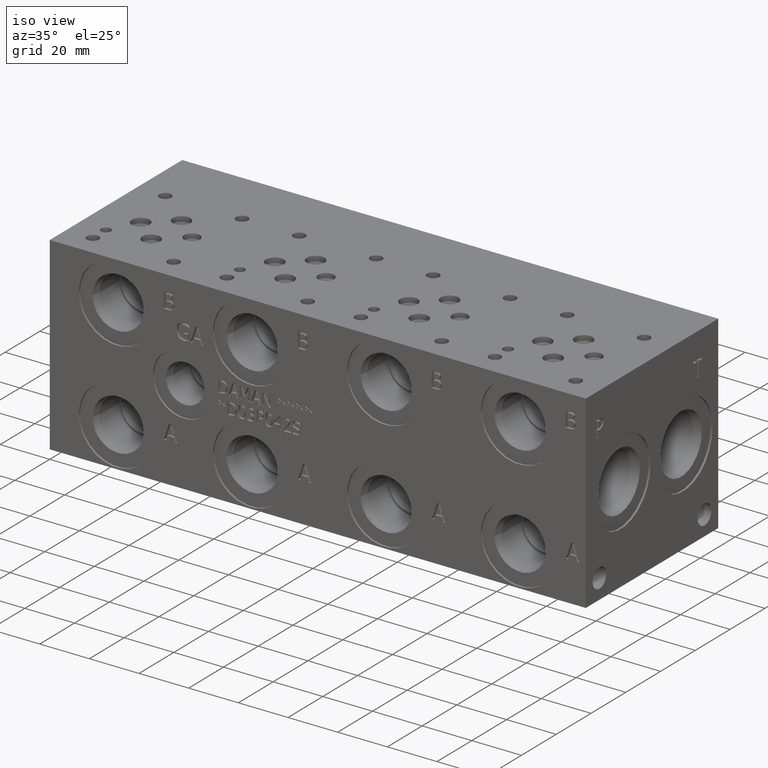
[diagram: clean part render]
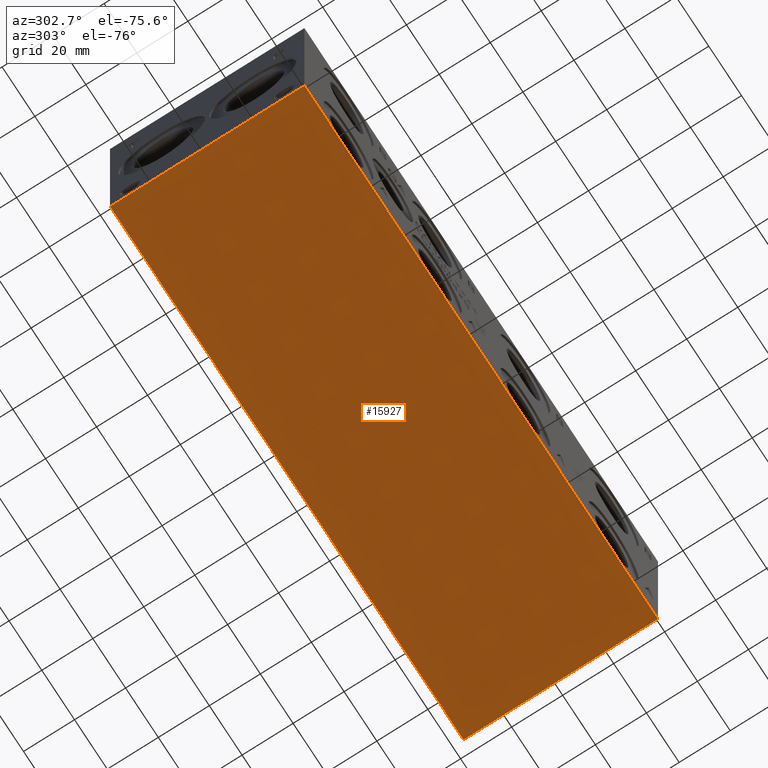
[diagram: tour spotlight — one face highlighted and labeled with its STEP entity id]
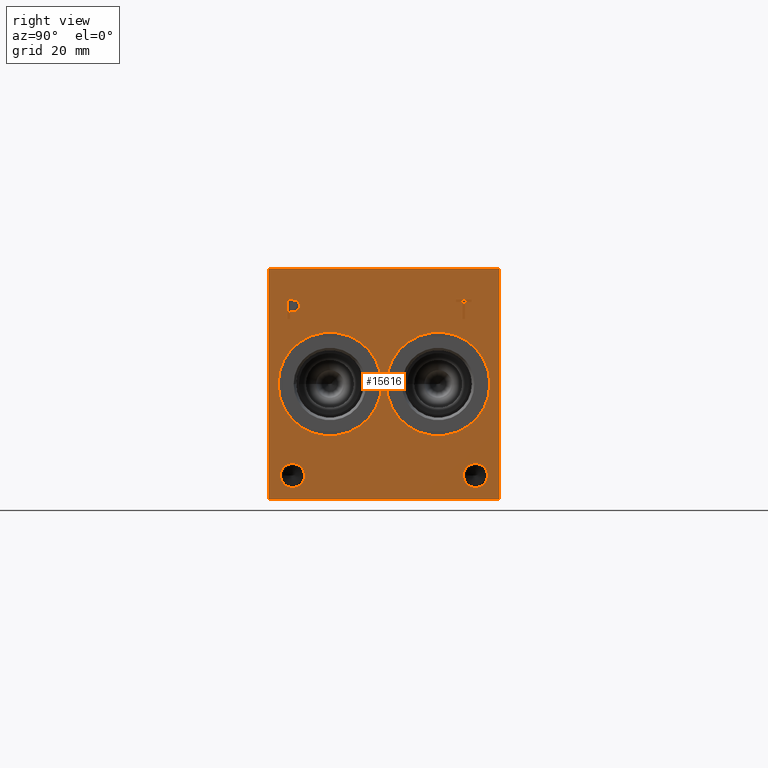
[diagram: tour spotlight — one face highlighted and labeled with its STEP entity id]
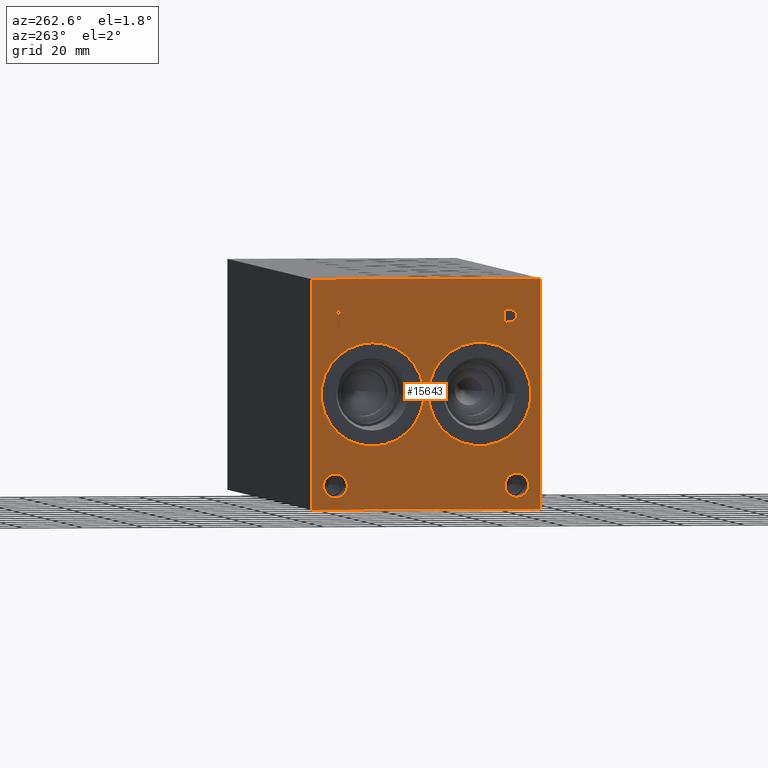
[diagram: tour spotlight — one face highlighted and labeled with its STEP entity id]
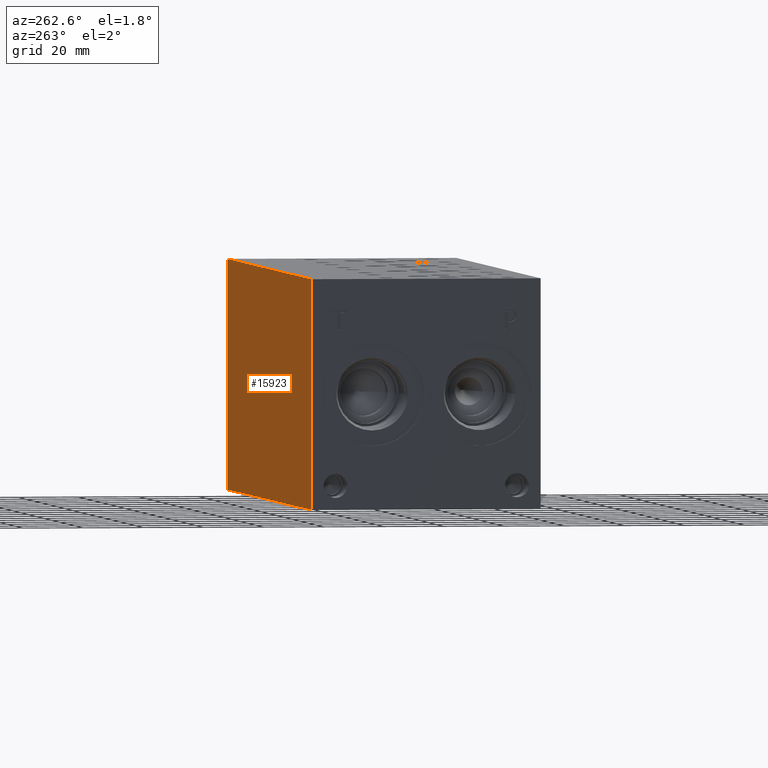
[diagram: tour spotlight — one face highlighted and labeled with its STEP entity id]
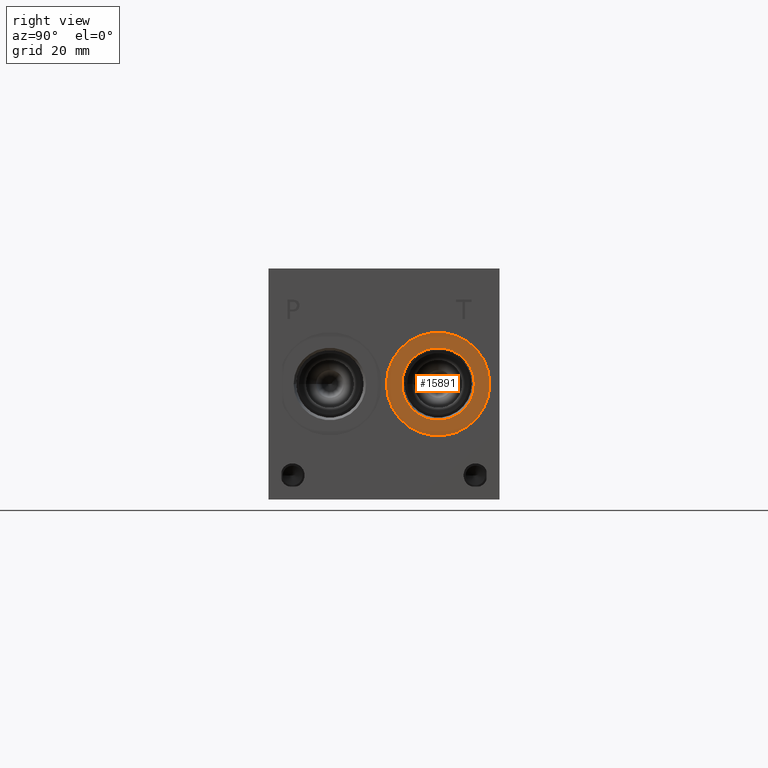
[diagram: tour spotlight — one face highlighted and labeled with its STEP entity id]
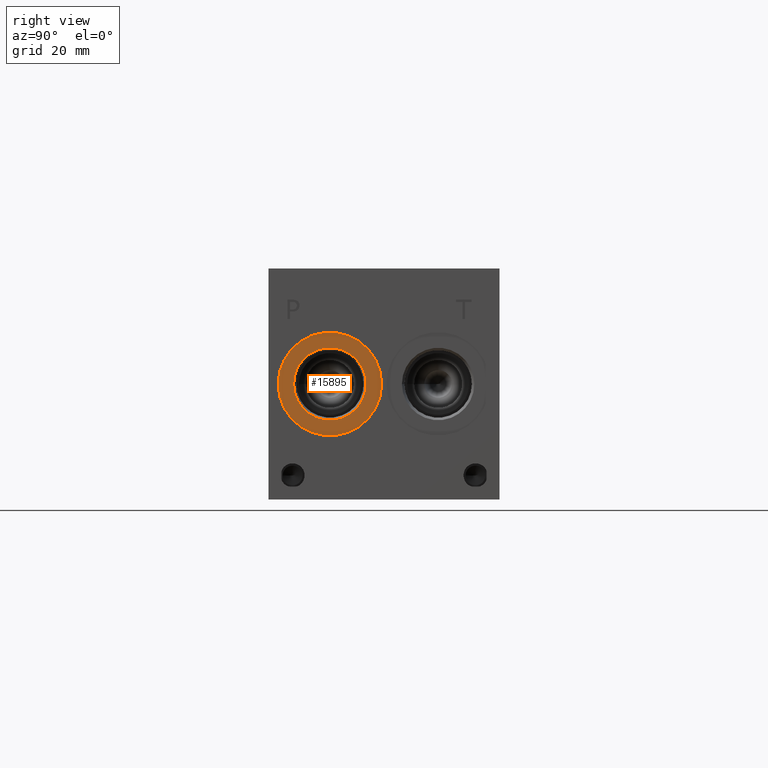
[diagram: tour spotlight — one face highlighted and labeled with its STEP entity id]
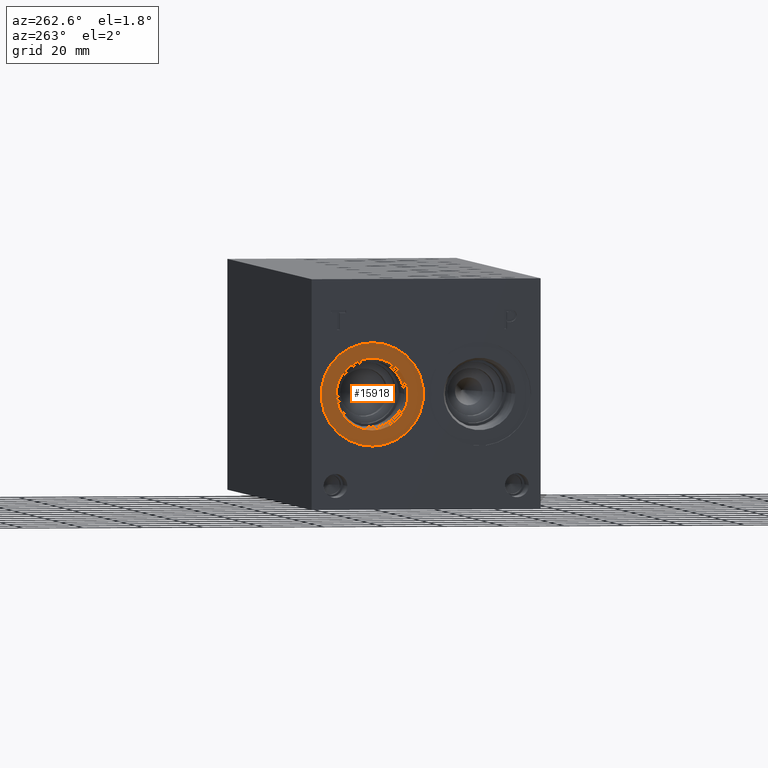
[diagram: tour spotlight — one face highlighted and labeled with its STEP entity id]
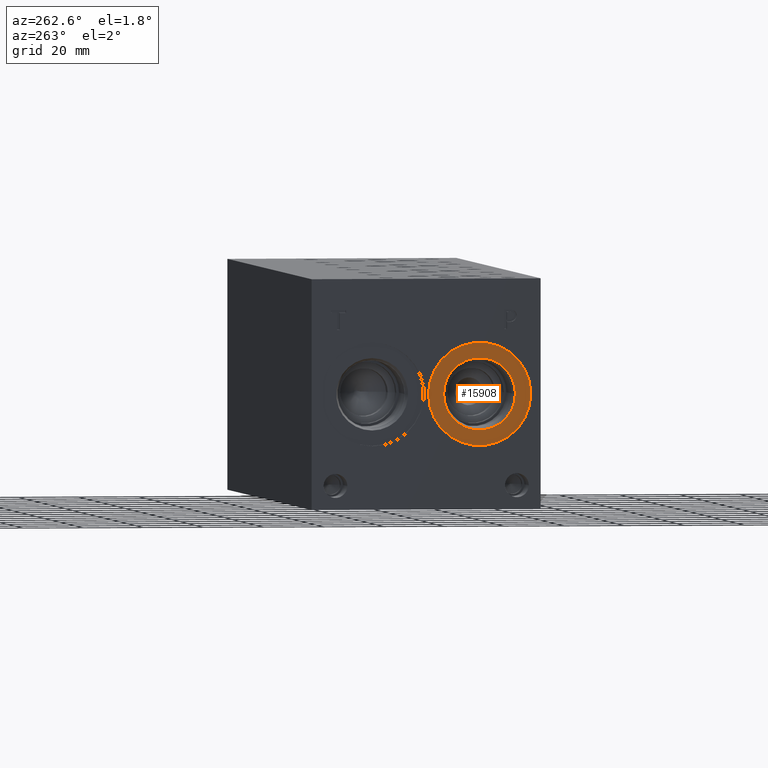
[diagram: tour spotlight — one face highlighted and labeled with its STEP entity id]
A machine part: a face-by-face anatomy tour. The part has 831 B-rep faces; the first image is the clean iso view, then the 8 largest visible faces are spotlighted one at a time (largest first), each with its STEP entity span.

Face 1 — auxiliary view, entity #15927. In plain terms, the highlighted planar face has unit normal (0, 0, 1).
Definition (entity closure, byte-faithful):
#2232=FACE_OUTER_BOUND('',#3217,.T.);
#3217=EDGE_LOOP('',(#14131,#14132,#14133,#14134));
#3496=LINE('',#22719,#4874);
#4285=LINE('',#25835,#5663);
#4344=LINE('',#26107,#5722);
#4594=LINE('',#27597,#5972);
#4874=VECTOR('',#17492,10.);
#5663=VECTOR('',#18865,10.);
#5722=VECTOR('',#18978,10.);
#5972=VECTOR('',#20678,10.);
#6274=VERTEX_POINT('',#22717);
#6275=VERTEX_POINT('',#22718);
#6934=VERTEX_POINT('',#25834);
#6992=VERTEX_POINT('',#26106);
#7958=EDGE_CURVE('',#6274,#6275,#3496,.T.);
#8937=EDGE_CURVE('',#6275,#6934,#4285,.T.);
#9020=EDGE_CURVE('',#6992,#6274,#4344,.T.);
#9715=EDGE_CURVE('',#6934,#6992,#4594,.T.);
#14131=ORIENTED_EDGE('',*,*,#7958,.F.);
#14132=ORIENTED_EDGE('',*,*,#9020,.F.);
#14133=ORIENTED_EDGE('',*,*,#9715,.F.);
#14134=ORIENTED_EDGE('',*,*,#8937,.F.);
#14562=PLANE('',#17063);
#15927=ADVANCED_FACE('',(#2232),#14562,.F.);
#17063=AXIS2_PLACEMENT_3D('',#27602,#20686,#20687);
#17492=DIRECTION('',(1.,0.,0.));
#18865=DIRECTION('',(0.,1.,0.));
#18978=DIRECTION('',(0.,-1.,0.));
#20678=DIRECTION('',(-1.,0.,0.));
#20686=DIRECTION('center_axis',(0.,0.,1.));
#20687=DIRECTION('ref_axis',(1.,0.,0.));
#22717=CARTESIAN_POINT('',(0.,0.,0.));
#22718=CARTESIAN_POINT('',(215.9,0.,0.));
#22719=CARTESIAN_POINT('',(0.,0.,0.));
#25834=CARTESIAN_POINT('',(215.9,76.2,0.));
#25835=CARTESIAN_POINT('',(215.9,0.,0.));
#26106=CARTESIAN_POINT('',(0.,76.2,0.));
#26107=CARTESIAN_POINT('',(0.,76.2,0.));
#27597=CARTESIAN_POINT('',(215.9,76.2,0.));
#27602=CARTESIAN_POINT('Origin',(107.95,38.1,0.));

Face 2 — right view, entity #15616. In plain terms, the highlighted planar face has unit normal (1, 0, 0).
Definition (entity closure, byte-faithful):
#255=CIRCLE('',#16308,17.0688);
#256=CIRCLE('',#16309,17.0688);
#257=CIRCLE('',#16310,17.0688);
#258=CIRCLE('',#16311,17.0688);
#259=CIRCLE('',#16312,3.9624);
#260=CIRCLE('',#16313,3.9624);
#261=CIRCLE('',#16314,3.9624);
#262=CIRCLE('',#16315,3.9624);
#767=FACE_BOUND('',#2812,.T.);
#768=FACE_BOUND('',#2813,.T.);
#769=FACE_BOUND('',#2814,.T.);
#770=FACE_BOUND('',#2815,.T.);
#771=FACE_BOUND('',#2816,.T.);
#772=FACE_BOUND('',#2817,.T.);
#1198=B_SPLINE_CURVE_WITH_KNOTS('',2,(#25736,#25737,#25738,#25739),
 .UNSPECIFIED.,.F.,.F.,(3,1,3),(0.,1.,2.),.UNSPECIFIED.);
#1200=B_SPLINE_CURVE_WITH_KNOTS('',2,(#25757,#25758,#25759,#25760),
 .UNSPECIFIED.,.F.,.F.,(3,1,3),(0.,1.,2.),.UNSPECIFIED.);
#1202=B_SPLINE_CURVE_WITH_KNOTS('',2,(#25806,#25807,#25808,#25809),
 .UNSPECIFIED.,.F.,.F.,(3,1,3),(0.,1.,2.),.UNSPECIFIED.);
#1204=B_SPLINE_CURVE_WITH_KNOTS('',2,(#25824,#25825,#25826,#25827),
 .UNSPECIFIED.,.F.,.F.,(3,1,3),(0.,1.,2.),.UNSPECIFIED.);
#1921=FACE_OUTER_BOUND('',#2811,.T.);
#2811=EDGE_LOOP('',(#12530,#12531,#12532,#12533));
#2812=EDGE_LOOP('',(#12534,#12535));
#2813=EDGE_LOOP('',(#12536,#12537));
#2814=EDGE_LOOP('',(#12538,#12539));
#2815=EDGE_LOOP('',(#12540,#12541));
#2816=EDGE_LOOP('',(#12542,#12543,#12544,#12545,#12546,#12547,#12548,#12549));
#2817=EDGE_LOOP('',(#12550,#12551,#12552,#12553,#12554,#12555,#12556,#12557,
#12558));
#3497=LINE('',#22721,#4875);
#4269=LINE('',#25769,#5647);
#4272=LINE('',#25775,#5650);
#4275=LINE('',#25781,#5653);
#4278=LINE('',#25787,#5656);
#4281=LINE('',#25793,#5659);
#4285=LINE('',#25835,#5663);
#4286=LINE('',#25837,#5664);
#4287=LINE('',#25838,#5665);
#4288=LINE('',#25857,#5666);
#4289=LINE('',#25859,#5667);
#4290=LINE('',#25861,#5668);
#4291=LINE('',#25863,#5669);
#4292=LINE('',#25865,#5670);
#4293=LINE('',#25867,#5671);
#4294=LINE('',#25869,#5672);
#4295=LINE('',#25870,#5673);
#4875=VECTOR('',#17493,10.);
#5647=VECTOR('',#18837,10.);
#5650=VECTOR('',#18842,10.);
#5653=VECTOR('',#18847,10.);
#5656=VECTOR('',#18852,10.);
#5659=VECTOR('',#18857,10.);
#5663=VECTOR('',#18865,10.);
#5664=VECTOR('',#18866,10.);
#5665=VECTOR('',#18867,10.);
#5666=VECTOR('',#18884,10.);
#5667=VECTOR('',#18885,10.);
#5668=VECTOR('',#18886,10.);
#5669=VECTOR('',#18887,10.);
#5670=VECTOR('',#18888,10.);
#5671=VECTOR('',#18889,10.);
#5672=VECTOR('',#18890,10.);
#5673=VECTOR('',#18891,10.);
#6275=VERTEX_POINT('',#22718);
#6276=VERTEX_POINT('',#22720);
#6916=VERTEX_POINT('',#25734);
#6917=VERTEX_POINT('',#25735);
#6920=VERTEX_POINT('',#25756);
#6922=VERTEX_POINT('',#25768);
#6924=VERTEX_POINT('',#25774);
#6926=VERTEX_POINT('',#25780);
#6928=VERTEX_POINT('',#25786);
#6930=VERTEX_POINT('',#25792);
#6932=VERTEX_POINT('',#25805);
#6934=VERTEX_POINT('',#25834);
#6935=VERTEX_POINT('',#25836);
#6936=VERTEX_POINT('',#25839);
#6937=VERTEX_POINT('',#25840);
#6938=VERTEX_POINT('',#25843);
#6939=VERTEX_POINT('',#25844);
#6940=VERTEX_POINT('',#25847);
#6941=VERTEX_POINT('',#25848);
#6942=VERTEX_POINT('',#25851);
#6943=VERTEX_POINT('',#25852);
#6944=VERTEX_POINT('',#25855);
#6945=VERTEX_POINT('',#25856);
#6946=VERTEX_POINT('',#25858);
#6947=VERTEX_POINT('',#25860);
#6948=VERTEX_POINT('',#25862);
#6949=VERTEX_POINT('',#25864);
#6950=VERTEX_POINT('',#25866);
#6951=VERTEX_POINT('',#25868);
#7959=EDGE_CURVE('',#6275,#6276,#3497,.T.);
#8910=EDGE_CURVE('',#6916,#6917,#1198,.T.);
#8914=EDGE_CURVE('',#6920,#6916,#1200,.T.);
#8917=EDGE_CURVE('',#6922,#6920,#4269,.T.);
#8920=EDGE_CURVE('',#6924,#6922,#4272,.T.);
#8923=EDGE_CURVE('',#6926,#6924,#4275,.T.);
#8926=EDGE_CURVE('',#6928,#6926,#4278,.T.);
#8929=EDGE_CURVE('',#6930,#6928,#4281,.T.);
#8932=EDGE_CURVE('',#6932,#6930,#1202,.T.);
#8935=EDGE_CURVE('',#6917,#6932,#1204,.T.);
#8937=EDGE_CURVE('',#6275,#6934,#4285,.T.);
#8938=EDGE_CURVE('',#6934,#6935,#4286,.T.);
#8939=EDGE_CURVE('',#6276,#6935,#4287,.T.);
#8940=EDGE_CURVE('',#6936,#6937,#255,.T.);
#8941=EDGE_CURVE('',#6937,#6936,#256,.T.);
#8942=EDGE_CURVE('',#6938,#6939,#257,.T.);
#8943=EDGE_CURVE('',#6939,#6938,#258,.T.);
#8944=EDGE_CURVE('',#6940,#6941,#259,.T.);
#8945=EDGE_CURVE('',#6941,#6940,#260,.T.);
#8946=EDGE_CURVE('',#6942,#6943,#261,.T.);
#8947=EDGE_CURVE('',#6943,#6942,#262,.T.);
#8948=EDGE_CURVE('',#6944,#6945,#4288,.T.);
#8949=EDGE_CURVE('',#6945,#6946,#4289,.T.);
#8950=EDGE_CURVE('',#6946,#6947,#4290,.T.);
#8951=EDGE_CURVE('',#6947,#6948,#4291,.T.);
#8952=EDGE_CURVE('',#6948,#6949,#4292,.T.);
#8953=EDGE_CURVE('',#6949,#6950,#4293,.T.);
#8954=EDGE_CURVE('',#6950,#6951,#4294,.T.);
#8955=EDGE_CURVE('',#6951,#6944,#4295,.T.);
#12530=ORIENTED_EDGE('',*,*,#8937,.T.);
#12531=ORIENTED_EDGE('',*,*,#8938,.T.);
#12532=ORIENTED_EDGE('',*,*,#8939,.F.);
#12533=ORIENTED_EDGE('',*,*,#7959,.F.);
#12534=ORIENTED_EDGE('',*,*,#8940,.T.);
#12535=ORIENTED_EDGE('',*,*,#8941,.T.);
#12536=ORIENTED_EDGE('',*,*,#8942,.T.);
#12537=ORIENTED_EDGE('',*,*,#8943,.T.);
#12538=ORIENTED_EDGE('',*,*,#8944,.T.);
#12539=ORIENTED_EDGE('',*,*,#8945,.T.);
#12540=ORIENTED_EDGE('',*,*,#8946,.T.);
#12541=ORIENTED_EDGE('',*,*,#8947,.T.);
#12542=ORIENTED_EDGE('',*,*,#8948,.T.);
#12543=ORIENTED_EDGE('',*,*,#8949,.T.);
#12544=ORIENTED_EDGE('',*,*,#8950,.T.);
#12545=ORIENTED_EDGE('',*,*,#8951,.T.);
#12546=ORIENTED_EDGE('',*,*,#8952,.T.);
#12547=ORIENTED_EDGE('',*,*,#8953,.T.);
#12548=ORIENTED_EDGE('',*,*,#8954,.T.);
#12549=ORIENTED_EDGE('',*,*,#8955,.T.);
#12550=ORIENTED_EDGE('',*,*,#8910,.T.);
#12551=ORIENTED_EDGE('',*,*,#8935,.T.);
#12552=ORIENTED_EDGE('',*,*,#8932,.T.);
#12553=ORIENTED_EDGE('',*,*,#8929,.T.);
#12554=ORIENTED_EDGE('',*,*,#8926,.T.);
#12555=ORIENTED_EDGE('',*,*,#8923,.T.);
#12556=ORIENTED_EDGE('',*,*,#8920,.T.);
#12557=ORIENTED_EDGE('',*,*,#8917,.T.);
#12558=ORIENTED_EDGE('',*,*,#8914,.T.);
#14482=PLANE('',#16307);
#15616=ADVANCED_FACE('',(#1921,#767,#768,#769,#770,#771,#772),#14482,.T.);
#16307=AXIS2_PLACEMENT_3D('',#25833,#18863,#18864);
#16308=AXIS2_PLACEMENT_3D('',#25841,#18868,#18869);
#16309=AXIS2_PLACEMENT_3D('',#25842,#18870,#18871);
#16310=AXIS2_PLACEMENT_3D('',#25845,#18872,#18873);
#16311=AXIS2_PLACEMENT_3D('',#25846,#18874,#18875);
#16312=AXIS2_PLACEMENT_3D('',#25849,#18876,#18877);
#16313=AXIS2_PLACEMENT_3D('',#25850,#18878,#18879);
#16314=AXIS2_PLACEMENT_3D('',#25853,#18880,#18881);
#16315=AXIS2_PLACEMENT_3D('',#25854,#18882,#18883);
#17493=DIRECTION('',(0.,0.,1.));
#18837=DIRECTION('',(0.,1.,0.));
#18842=DIRECTION('',(0.,0.,1.));
#18847=DIRECTION('',(0.,-1.,0.));
#18852=DIRECTION('',(0.,0.,-1.));
#18857=DIRECTION('',(0.,-1.,0.));
#18863=DIRECTION('center_axis',(1.,0.,0.));
#18864=DIRECTION('ref_axis',(0.,1.,0.));
#18865=DIRECTION('',(0.,1.,0.));
#18866=DIRECTION('',(0.,0.,1.));
#18867=DIRECTION('',(0.,1.,0.));
#18868=DIRECTION('center_axis',(-1.,0.,0.));
#18869=DIRECTION('ref_axis',(0.,1.,0.));
#18870=DIRECTION('center_axis',(-1.,0.,0.));
#18871=DIRECTION('ref_axis',(0.,1.,0.));
#18872=DIRECTION('center_axis',(-1.,0.,0.));
#18873=DIRECTION('ref_axis',(0.,1.,0.));
#18874=DIRECTION('center_axis',(-1.,0.,0.));
#18875=DIRECTION('ref_axis',(0.,1.,0.));
#18876=DIRECTION('center_axis',(-1.,0.,0.));
#18877=DIRECTION('ref_axis',(0.,1.,0.));
#18878=DIRECTION('center_axis',(-1.,0.,0.));
#18879=DIRECTION('ref_axis',(0.,1.,0.));
#18880=DIRECTION('center_axis',(-1.,0.,0.));
#18881=DIRECTION('ref_axis',(0.,1.,0.));
#18882=DIRECTION('center_axis',(-1.,0.,0.));
#18883=DIRECTION('ref_axis',(0.,1.,0.));
#18884=DIRECTION('',(0.,-1.,0.));
#18885=DIRECTION('',(0.,0.,1.));
#18886=DIRECTION('',(0.,-1.,0.));
#18887=DIRECTION('',(0.,0.,1.));
#18888=DIRECTION('',(0.,1.,0.));
#18889=DIRECTION('',(0.,0.,-1.));
#18890=DIRECTION('',(0.,-1.,0.));
#18891=DIRECTION('',(0.,0.,-1.));
#22718=CARTESIAN_POINT('',(215.9,0.,0.));
#22720=CARTESIAN_POINT('',(215.9,0.,76.2));
#22721=CARTESIAN_POINT('',(215.9,0.,0.));
#25734=CARTESIAN_POINT('',(215.9,9.45681720235939,65.4850181439707));
#25735=CARTESIAN_POINT('',(215.9,10.213259654532,63.9669873726039));
#25736=CARTESIAN_POINT('Ctrl Pts',(215.9,9.45681720235939,65.4850181439707));
#25737=CARTESIAN_POINT('Ctrl Pts',(215.9,9.81188202684857,65.2431623939564));
#25738=CARTESIAN_POINT('Ctrl Pts',(215.9,10.213259654532,64.4970116758269));
#25739=CARTESIAN_POINT('Ctrl Pts',(215.9,10.213259654532,63.9669873726039));
#25756=CARTESIAN_POINT('',(215.9,7.7947021543883,65.8812499046326));
#25757=CARTESIAN_POINT('Ctrl Pts',(215.9,7.7947021543883,65.8812499046326));
#25758=CARTESIAN_POINT('Ctrl Pts',(215.9,8.36074752676236,65.8812499046326));
#25759=CARTESIAN_POINT('Ctrl Pts',(215.9,9.15321104808603,65.6959986918556));
#25760=CARTESIAN_POINT('Ctrl Pts',(215.9,9.45681720235939,65.4850181439707));
#25768=CARTESIAN_POINT('',(215.9,6.19948337769779,65.8812499046326));
#25769=CARTESIAN_POINT('',(215.9,3.09974168884889,65.8812499046326));
#25774=CARTESIAN_POINT('',(215.9,6.19948337769779,59.53125));
#25775=CARTESIAN_POINT('',(215.9,6.19948337769779,29.765625));
#25780=CARTESIAN_POINT('',(215.9,7.04340556923729,59.53125));
#25781=CARTESIAN_POINT('',(215.9,3.52170278461864,59.53125));
#25786=CARTESIAN_POINT('',(215.9,7.04340556923729,61.8983488299279));
#25787=CARTESIAN_POINT('',(215.9,7.04340556923729,30.9491744149639));
#25792=CARTESIAN_POINT('',(215.9,7.75868108523723,61.8983488299279));
#25793=CARTESIAN_POINT('',(215.9,3.87934054261861,61.8983488299279));
#25805=CARTESIAN_POINT('',(215.9,9.6575060162011,62.5570198086904));
#25806=CARTESIAN_POINT('Ctrl Pts',(215.9,9.6575060162011,62.5570198086904));
#25807=CARTESIAN_POINT('Ctrl Pts',(215.9,9.32817052681983,62.2328301863307));
#25808=CARTESIAN_POINT('Ctrl Pts',(215.9,8.43793553208609,61.8983488299279));
#25809=CARTESIAN_POINT('Ctrl Pts',(215.9,7.75868108523723,61.8983488299279));
#25824=CARTESIAN_POINT('Ctrl Pts',(215.9,10.213259654532,63.9669873726039));
#25825=CARTESIAN_POINT('Ctrl Pts',(215.9,10.213259654532,63.5553180108774));
#25826=CARTESIAN_POINT('Ctrl Pts',(215.9,9.9199452343018,62.8143131597695));
#25827=CARTESIAN_POINT('Ctrl Pts',(215.9,9.6575060162011,62.5570198086904));
#25833=CARTESIAN_POINT('Origin',(215.9,0.,0.));
#25834=CARTESIAN_POINT('',(215.9,76.2,0.));
#25835=CARTESIAN_POINT('',(215.9,0.,0.));
#25836=CARTESIAN_POINT('',(215.9,76.2,76.2));
#25837=CARTESIAN_POINT('',(215.9,76.2,0.));
#25838=CARTESIAN_POINT('',(215.9,0.,76.2));
#25839=CARTESIAN_POINT('',(215.9,37.3126,38.1));
#25840=CARTESIAN_POINT('',(215.9,3.175,38.1));
#25841=CARTESIAN_POINT('Origin',(215.9,20.2438,38.1));
#25842=CARTESIAN_POINT('Origin',(215.9,20.2438,38.1));
#25843=CARTESIAN_POINT('',(215.9,73.025,38.1));
#25844=CARTESIAN_POINT('',(215.9,38.8874,38.1));
#25845=CARTESIAN_POINT('Origin',(215.9,55.9562,38.1));
#25846=CARTESIAN_POINT('Origin',(215.9,55.9562,38.1));
#25847=CARTESIAN_POINT('',(215.9,11.8872,7.9248));
#25848=CARTESIAN_POINT('',(215.9,3.9624,7.9248));
#25849=CARTESIAN_POINT('Origin',(215.9,7.9248,7.9248));
#25850=CARTESIAN_POINT('Origin',(215.9,7.9248,7.9248));
#25851=CARTESIAN_POINT('',(215.9,72.2376,7.9248));
#25852=CARTESIAN_POINT('',(215.9,64.3128,7.9248));
#25853=CARTESIAN_POINT('Origin',(215.9,68.2752,7.9248));
#25854=CARTESIAN_POINT('Origin',(215.9,68.2752,7.9248));
#25855=CARTESIAN_POINT('',(215.9,64.881665271453,59.53125));
#25856=CARTESIAN_POINT('',(215.9,64.0377430799135,59.53125));
#25857=CARTESIAN_POINT('',(215.9,32.4408326357265,59.53125));
#25858=CARTESIAN_POINT('',(215.9,64.0377430799135,65.1299533194816));
#25859=CARTESIAN_POINT('',(215.9,64.0377430799135,29.765625));
#25860=CARTESIAN_POINT('',(215.9,61.9073541329784,65.1299533194816));
#25861=CARTESIAN_POINT('',(215.9,32.0188715399567,65.1299533194816));
#25862=CARTESIAN_POINT('',(215.9,61.9073541329784,65.8812499046326));
#25863=CARTESIAN_POINT('',(215.9,61.9073541329784,32.5649766597408));
#25864=CARTESIAN_POINT('',(215.9,67.0120542183881,65.8812499046326));
#25865=CARTESIAN_POINT('',(215.9,30.9536770664892,65.8812499046326));
#25866=CARTESIAN_POINT('',(215.9,67.0120542183881,65.1299533194816));
#25867=CARTESIAN_POINT('',(215.9,67.0120542183881,32.9406249523163));
#25868=CARTESIAN_POINT('',(215.9,64.881665271453,65.1299533194816));
#25869=CARTESIAN_POINT('',(215.9,33.506027109194,65.1299533194816));
#25870=CARTESIAN_POINT('',(215.9,64.881665271453,32.5649766597408));

Face 3 — auxiliary view, entity #15643. In plain terms, the highlighted planar face has unit normal (-1, 0, 0).
Definition (entity closure, byte-faithful):
#263=CIRCLE('',#16335,17.0688);
#264=CIRCLE('',#16336,17.0688);
#265=CIRCLE('',#16337,17.0688);
#266=CIRCLE('',#16338,17.0688);
#267=CIRCLE('',#16339,3.9624);
#268=CIRCLE('',#16340,3.9624);
#269=CIRCLE('',#16341,3.9624);
#270=CIRCLE('',#16342,3.9624);
#774=FACE_BOUND('',#2846,.T.);
#775=FACE_BOUND('',#2847,.T.);
#776=FACE_BOUND('',#2848,.T.);
#777=FACE_BOUND('',#2849,.T.);
#778=FACE_BOUND('',#2850,.T.);
#779=FACE_BOUND('',#2851,.T.);
#1214=B_SPLINE_CURVE_WITH_KNOTS('',2,(#26008,#26009,#26010,#26011),
 .UNSPECIFIED.,.F.,.F.,(3,1,3),(0.,1.,2.),.UNSPECIFIED.);
#1216=B_SPLINE_CURVE_WITH_KNOTS('',2,(#26029,#26030,#26031,#26032),
 .UNSPECIFIED.,.F.,.F.,(3,1,3),(0.,1.,2.),.UNSPECIFIED.);
#1218=B_SPLINE_CURVE_WITH_KNOTS('',2,(#26078,#26079,#26080,#26081),
 .UNSPECIFIED.,.F.,.F.,(3,1,3),(0.,1.,2.),.UNSPECIFIED.);
#1220=B_SPLINE_CURVE_WITH_KNOTS('',2,(#26096,#26097,#26098,#26099),
 .UNSPECIFIED.,.F.,.F.,(3,1,3),(0.,1.,2.),.UNSPECIFIED.);
#1948=FACE_OUTER_BOUND('',#2845,.T.);
#2845=EDGE_LOOP('',(#12679,#12680,#12681,#12682));
#2846=EDGE_LOOP('',(#12683,#12684));
#2847=EDGE_LOOP('',(#12685,#12686));
#2848=EDGE_LOOP('',(#12687,#12688));
#2849=EDGE_LOOP('',(#12689,#12690));
#2850=EDGE_LOOP('',(#12691,#12692,#12693,#12694,#12695,#12696,#12697,#12698));
#2851=EDGE_LOOP('',(#12699,#12700,#12701,#12702,#12703,#12704,#12705,#12706,
#12707));
#3499=LINE('',#22724,#4877);
#4328=LINE('',#26041,#5706);
#4331=LINE('',#26047,#5709);
#4334=LINE('',#26053,#5712);
#4337=LINE('',#26059,#5715);
#4340=LINE('',#26065,#5718);
#4344=LINE('',#26107,#5722);
#4345=LINE('',#26109,#5723);
#4346=LINE('',#26110,#5724);
#4347=LINE('',#26129,#5725);
#4348=LINE('',#26131,#5726);
#4349=LINE('',#26133,#5727);
#4350=LINE('',#26135,#5728);
#4351=LINE('',#26137,#5729);
#4352=LINE('',#26139,#5730);
#4353=LINE('',#26141,#5731);
#4354=LINE('',#26142,#5732);
#4877=VECTOR('',#17495,10.);
#5706=VECTOR('',#18950,10.);
#5709=VECTOR('',#18955,10.);
#5712=VECTOR('',#18960,10.);
#5715=VECTOR('',#18965,10.);
#5718=VECTOR('',#18970,10.);
#5722=VECTOR('',#18978,10.);
#5723=VECTOR('',#18979,10.);
#5724=VECTOR('',#18980,10.);
#5725=VECTOR('',#18997,10.);
#5726=VECTOR('',#18998,10.);
#5727=VECTOR('',#18999,10.);
#5728=VECTOR('',#19000,10.);
#5729=VECTOR('',#19001,10.);
#5730=VECTOR('',#19002,10.);
#5731=VECTOR('',#19003,10.);
#5732=VECTOR('',#19004,10.);
#6274=VERTEX_POINT('',#22717);
#6277=VERTEX_POINT('',#22722);
#6974=VERTEX_POINT('',#26006);
#6975=VERTEX_POINT('',#26007);
#6978=VERTEX_POINT('',#26028);
#6980=VERTEX_POINT('',#26040);
#6982=VERTEX_POINT('',#26046);
#6984=VERTEX_POINT('',#26052);
#6986=VERTEX_POINT('',#26058);
#6988=VERTEX_POINT('',#26064);
#6990=VERTEX_POINT('',#26077);
#6992=VERTEX_POINT('',#26106);
#6993=VERTEX_POINT('',#26108);
#6994=VERTEX_POINT('',#26111);
#6995=VERTEX_POINT('',#26112);
#6996=VERTEX_POINT('',#26115);
#6997=VERTEX_POINT('',#26116);
#6998=VERTEX_POINT('',#26119);
#6999=VERTEX_POINT('',#26120);
#7000=VERTEX_POINT('',#26123);
#7001=VERTEX_POINT('',#26124);
#7002=VERTEX_POINT('',#26127);
#7003=VERTEX_POINT('',#26128);
#7004=VERTEX_POINT('',#26130);
#7005=VERTEX_POINT('',#26132);
#7006=VERTEX_POINT('',#26134);
#7007=VERTEX_POINT('',#26136);
#7008=VERTEX_POINT('',#26138);
#7009=VERTEX_POINT('',#26140);
#7961=EDGE_CURVE('',#6274,#6277,#3499,.T.);
#8993=EDGE_CURVE('',#6974,#6975,#1214,.T.);
#8997=EDGE_CURVE('',#6978,#6974,#1216,.T.);
#9000=EDGE_CURVE('',#6980,#6978,#4328,.T.);
#9003=EDGE_CURVE('',#6982,#6980,#4331,.T.);
#9006=EDGE_CURVE('',#6984,#6982,#4334,.T.);
#9009=EDGE_CURVE('',#6986,#6984,#4337,.T.);
#9012=EDGE_CURVE('',#6988,#6986,#4340,.T.);
#9015=EDGE_CURVE('',#6990,#6988,#1218,.T.);
#9018=EDGE_CURVE('',#6975,#6990,#1220,.T.);
#9020=EDGE_CURVE('',#6992,#6274,#4344,.T.);
#9021=EDGE_CURVE('',#6993,#6277,#4345,.T.);
#9022=EDGE_CURVE('',#6992,#6993,#4346,.T.);
#9023=EDGE_CURVE('',#6994,#6995,#263,.T.);
#9024=EDGE_CURVE('',#6995,#6994,#264,.T.);
#9025=EDGE_CURVE('',#6996,#6997,#265,.T.);
#9026=EDGE_CURVE('',#6997,#6996,#266,.T.);
#9027=EDGE_CURVE('',#6998,#6999,#267,.T.);
#9028=EDGE_CURVE('',#6999,#6998,#268,.T.);
#9029=EDGE_CURVE('',#7000,#7001,#269,.T.);
#9030=EDGE_CURVE('',#7001,#7000,#270,.T.);
#9031=EDGE_CURVE('',#7002,#7003,#4347,.T.);
#9032=EDGE_CURVE('',#7003,#7004,#4348,.T.);
#9033=EDGE_CURVE('',#7004,#7005,#4349,.T.);
#9034=EDGE_CURVE('',#7005,#7006,#4350,.T.);
#9035=EDGE_CURVE('',#7006,#7007,#4351,.T.);
#9036=EDGE_CURVE('',#7007,#7008,#4352,.T.);
#9037=EDGE_CURVE('',#7008,#7009,#4353,.T.);
#9038=EDGE_CURVE('',#7009,#7002,#4354,.T.);
#12679=ORIENTED_EDGE('',*,*,#9020,.T.);
#12680=ORIENTED_EDGE('',*,*,#7961,.T.);
#12681=ORIENTED_EDGE('',*,*,#9021,.F.);
#12682=ORIENTED_EDGE('',*,*,#9022,.F.);
#12683=ORIENTED_EDGE('',*,*,#9023,.T.);
#12684=ORIENTED_EDGE('',*,*,#9024,.T.);
#12685=ORIENTED_EDGE('',*,*,#9025,.T.);
#12686=ORIENTED_EDGE('',*,*,#9026,.T.);
#12687=ORIENTED_EDGE('',*,*,#9027,.T.);
#12688=ORIENTED_EDGE('',*,*,#9028,.T.);
#12689=ORIENTED_EDGE('',*,*,#9029,.T.);
#12690=ORIENTED_EDGE('',*,*,#9030,.T.);
#12691=ORIENTED_EDGE('',*,*,#9031,.T.);
#12692=ORIENTED_EDGE('',*,*,#9032,.T.);
#12693=ORIENTED_EDGE('',*,*,#9033,.T.);
#12694=ORIENTED_EDGE('',*,*,#9034,.T.);
#12695=ORIENTED_EDGE('',*,*,#9035,.T.);
#12696=ORIENTED_EDGE('',*,*,#9036,.T.);
#12697=ORIENTED_EDGE('',*,*,#9037,.T.);
#12698=ORIENTED_EDGE('',*,*,#9038,.T.);
#12699=ORIENTED_EDGE('',*,*,#8993,.T.);
#12700=ORIENTED_EDGE('',*,*,#9018,.T.);
#12701=ORIENTED_EDGE('',*,*,#9015,.T.);
#12702=ORIENTED_EDGE('',*,*,#9012,.T.);
#12703=ORIENTED_EDGE('',*,*,#9009,.T.);
#12704=ORIENTED_EDGE('',*,*,#9006,.T.);
#12705=ORIENTED_EDGE('',*,*,#9003,.T.);
#12706=ORIENTED_EDGE('',*,*,#9000,.T.);
#12707=ORIENTED_EDGE('',*,*,#8997,.T.);
#14501=PLANE('',#16334);
#15643=ADVANCED_FACE('',(#1948,#774,#775,#776,#777,#778,#779),#14501,.T.);
#16334=AXIS2_PLACEMENT_3D('',#26105,#18976,#18977);
#16335=AXIS2_PLACEMENT_3D('',#26113,#18981,#18982);
#16336=AXIS2_PLACEMENT_3D('',#26114,#18983,#18984);
#16337=AXIS2_PLACEMENT_3D('',#26117,#18985,#18986);
#16338=AXIS2_PLACEMENT_3D('',#26118,#18987,#18988);
#16339=AXIS2_PLACEMENT_3D('',#26121,#18989,#18990);
#16340=AXIS2_PLACEMENT_3D('',#26122,#18991,#18992);
#16341=AXIS2_PLACEMENT_3D('',#26125,#18993,#18994);
#16342=AXIS2_PLACEMENT_3D('',#26126,#18995,#18996);
#17495=DIRECTION('',(0.,0.,1.));
#18950=DIRECTION('',(0.,-1.,0.));
#18955=DIRECTION('',(0.,-3.14708893596576E-15,1.));
#18960=DIRECTION('',(0.,1.,0.));
#18965=DIRECTION('',(0.,3.75218139805001E-15,-1.));
#18970=DIRECTION('',(0.,1.,0.));
#18976=DIRECTION('center_axis',(-1.,0.,0.));
#18977=DIRECTION('ref_axis',(0.,-1.,0.));
#18978=DIRECTION('',(0.,-1.,0.));
#18979=DIRECTION('',(0.,-1.,0.));
#18980=DIRECTION('',(0.,0.,1.));
#18981=DIRECTION('center_axis',(1.,0.,0.));
#18982=DIRECTION('ref_axis',(0.,0.,1.));
#18983=DIRECTION('center_axis',(1.,0.,0.));
#18984=DIRECTION('ref_axis',(0.,0.,1.));
#18985=DIRECTION('center_axis',(1.,0.,0.));
#18986=DIRECTION('ref_axis',(0.,1.,0.));
#18987=DIRECTION('center_axis',(1.,0.,0.));
#18988=DIRECTION('ref_axis',(0.,1.,0.));
#18989=DIRECTION('center_axis',(1.,0.,0.));
#18990=DIRECTION('ref_axis',(0.,1.,0.));
#18991=DIRECTION('center_axis',(1.,0.,0.));
#18992=DIRECTION('ref_axis',(0.,1.,0.));
#18993=DIRECTION('center_axis',(1.,0.,0.));
#18994=DIRECTION('ref_axis',(0.,1.,0.));
#18995=DIRECTION('center_axis',(1.,0.,0.));
#18996=DIRECTION('ref_axis',(0.,1.,0.));
#18997=DIRECTION('',(0.,1.,0.));
#18998=DIRECTION('',(0.,-3.17280044688052E-15,1.));
#18999=DIRECTION('',(0.,1.,0.));
#19000=DIRECTION('',(0.,0.,1.));
#19001=DIRECTION('',(0.,-1.,-3.47984565141734E-15));
#19002=DIRECTION('',(0.,0.,-1.));
#19003=DIRECTION('',(0.,1.,8.33818088455555E-15));
#19004=DIRECTION('',(0.,3.17280044688052E-15,-1.));
#22717=CARTESIAN_POINT('',(0.,0.,0.));
#22722=CARTESIAN_POINT('',(0.,0.,76.2));
#22724=CARTESIAN_POINT('',(0.,0.,0.));
#26006=CARTESIAN_POINT('',(0.,8.79943279764059,65.4850181439707));
#26007=CARTESIAN_POINT('',(0.,8.04299034546799,63.966987372604));
#26008=CARTESIAN_POINT('Ctrl Pts',(0.,8.79943279764059,65.4850181439707));
#26009=CARTESIAN_POINT('Ctrl Pts',(0.,8.44436797315141,65.2431623939564));
#26010=CARTESIAN_POINT('Ctrl Pts',(0.,8.04299034546799,64.4970116758269));
#26011=CARTESIAN_POINT('Ctrl Pts',(0.,8.04299034546799,63.966987372604));
#26028=CARTESIAN_POINT('',(0.,10.4615478456117,65.8812499046326));
#26029=CARTESIAN_POINT('Ctrl Pts',(0.,10.4615478456117,65.8812499046326));
#26030=CARTESIAN_POINT('Ctrl Pts',(0.,9.89550247323762,65.8812499046326));
#26031=CARTESIAN_POINT('Ctrl Pts',(0.,9.10303895191394,65.6959986918556));
#26032=CARTESIAN_POINT('Ctrl Pts',(0.,8.79943279764059,65.4850181439707));
#26040=CARTESIAN_POINT('',(0.,12.0567666223022,65.8812499046326));
#26041=CARTESIAN_POINT('',(0.,44.1283833111511,65.8812499046326));
#26046=CARTESIAN_POINT('',(0.,12.0567666223022,59.53125));
#26047=CARTESIAN_POINT('',(0.,12.0567666223023,29.7656249999999));
#26052=CARTESIAN_POINT('',(0.,11.2128444307627,59.53125));
#26053=CARTESIAN_POINT('',(0.,43.7064222153814,59.53125));
#26058=CARTESIAN_POINT('',(0.,11.2128444307627,61.8983488299279));
#26059=CARTESIAN_POINT('',(0.,11.2128444307628,30.9491744149638));
#26064=CARTESIAN_POINT('',(0.,10.4975689147628,61.8983488299279));
#26065=CARTESIAN_POINT('',(0.,43.3487844573814,61.8983488299279));
#26077=CARTESIAN_POINT('',(0.,8.59874398379888,62.5570198086904));
#26078=CARTESIAN_POINT('Ctrl Pts',(0.,8.59874398379888,62.5570198086904));
#26079=CARTESIAN_POINT('Ctrl Pts',(0.,8.92807947318015,62.2328301863307));
#26080=CARTESIAN_POINT('Ctrl Pts',(0.,9.81831446791389,61.8983488299279));
#26081=CARTESIAN_POINT('Ctrl Pts',(0.,10.4975689147628,61.8983488299279));
#26096=CARTESIAN_POINT('Ctrl Pts',(0.,8.04299034546799,63.966987372604));
#26097=CARTESIAN_POINT('Ctrl Pts',(0.,8.04299034546799,63.5553180108774));
#26098=CARTESIAN_POINT('Ctrl Pts',(0.,8.33630476569819,62.8143131597695));
#26099=CARTESIAN_POINT('Ctrl Pts',(0.,8.59874398379888,62.5570198086904));
#26105=CARTESIAN_POINT('Origin',(0.,76.2,0.));
#26106=CARTESIAN_POINT('',(0.,76.2,0.));
#26107=CARTESIAN_POINT('',(0.,76.2,0.));
#26108=CARTESIAN_POINT('',(0.,76.2,76.2));
#26109=CARTESIAN_POINT('',(0.,76.2,76.2));
#26110=CARTESIAN_POINT('',(0.,76.2,0.));
#26111=CARTESIAN_POINT('',(0.,55.9562,55.1688));
#26112=CARTESIAN_POINT('',(0.,55.9562,21.0312));
#26113=CARTESIAN_POINT('Origin',(0.,55.9562,38.1));
#26114=CARTESIAN_POINT('Origin',(0.,55.9562,38.1));
#26115=CARTESIAN_POINT('',(0.,37.3126,38.1));
#26116=CARTESIAN_POINT('',(0.,3.175,38.1));
#26117=CARTESIAN_POINT('Origin',(0.,20.2438,38.1));
#26118=CARTESIAN_POINT('Origin',(0.,20.2438,38.1));
#26119=CARTESIAN_POINT('',(0.,72.2376,7.92480000000001));
#26120=CARTESIAN_POINT('',(0.,64.3128,7.92480000000001));
#26121=CARTESIAN_POINT('Origin',(0.,68.2752,7.92480000000001));
#26122=CARTESIAN_POINT('Origin',(0.,68.2752,7.92480000000001));
#26123=CARTESIAN_POINT('',(0.,11.8872,7.92480000000001));
#26124=CARTESIAN_POINT('',(0.,3.9624,7.92480000000001));
#26125=CARTESIAN_POINT('Origin',(0.,7.9248,7.92480000000001));
#26126=CARTESIAN_POINT('Origin',(0.,7.9248,7.92480000000001));
#26127=CARTESIAN_POINT('',(0.,66.880834728547,59.53125));
#26128=CARTESIAN_POINT('',(0.,67.7247569200865,59.53125));
#26129=CARTESIAN_POINT('',(0.,71.5404173642735,59.53125));
#26130=CARTESIAN_POINT('',(0.,67.7247569200865,65.1299533194816));
#26131=CARTESIAN_POINT('',(0.,67.7247569200866,29.765625));
#26132=CARTESIAN_POINT('',(0.,69.8551458670215,65.1299533194816));
#26133=CARTESIAN_POINT('',(0.,71.9623784600432,65.1299533194816));
#26134=CARTESIAN_POINT('',(0.,69.8551458670215,65.8812499046326));
#26135=CARTESIAN_POINT('',(0.,69.8551458670215,32.5649766597408));
#26136=CARTESIAN_POINT('',(0.,64.7504457816119,65.8812499046326));
#26137=CARTESIAN_POINT('',(0.,73.0275729335107,65.8812499046326));
#26138=CARTESIAN_POINT('',(0.,64.7504457816119,65.1299533194815));
#26139=CARTESIAN_POINT('',(0.,64.7504457816119,32.9406249523163));
#26140=CARTESIAN_POINT('',(0.,66.880834728547,65.1299533194816));
#26141=CARTESIAN_POINT('',(0.,70.4752228908057,65.1299533194816));
#26142=CARTESIAN_POINT('',(0.,66.8808347285471,32.5649766597408));

Face 4 — auxiliary view, entity #15923. In plain terms, the highlighted planar face has unit normal (0, 1, 0).
Definition (entity closure, byte-faithful):
#2228=FACE_OUTER_BOUND('',#3177,.T.);
#3177=EDGE_LOOP('',(#14037,#14038,#14039,#14040));
#4286=LINE('',#25837,#5664);
#4346=LINE('',#26110,#5724);
#4594=LINE('',#27597,#5972);
#4595=LINE('',#27598,#5973);
#5664=VECTOR('',#18866,10.);
#5724=VECTOR('',#18980,10.);
#5972=VECTOR('',#20678,10.);
#5973=VECTOR('',#20679,10.);
#6934=VERTEX_POINT('',#25834);
#6935=VERTEX_POINT('',#25836);
#6992=VERTEX_POINT('',#26106);
#6993=VERTEX_POINT('',#26108);
#8938=EDGE_CURVE('',#6934,#6935,#4286,.T.);
#9022=EDGE_CURVE('',#6992,#6993,#4346,.T.);
#9715=EDGE_CURVE('',#6934,#6992,#4594,.T.);
#9716=EDGE_CURVE('',#6935,#6993,#4595,.T.);
#14037=ORIENTED_EDGE('',*,*,#9715,.T.);
#14038=ORIENTED_EDGE('',*,*,#9022,.T.);
#14039=ORIENTED_EDGE('',*,*,#9716,.F.);
#14040=ORIENTED_EDGE('',*,*,#8938,.F.);
#14558=PLANE('',#17059);
#15923=ADVANCED_FACE('',(#2228),#14558,.T.);
#17059=AXIS2_PLACEMENT_3D('',#27596,#20676,#20677);
#18866=DIRECTION('',(0.,0.,1.));
#18980=DIRECTION('',(0.,0.,1.));
#20676=DIRECTION('center_axis',(0.,1.,0.));
#20677=DIRECTION('ref_axis',(-1.,0.,0.));
#20678=DIRECTION('',(-1.,0.,0.));
#20679=DIRECTION('',(-1.,0.,0.));
#25834=CARTESIAN_POINT('',(215.9,76.2,0.));
#25836=CARTESIAN_POINT('',(215.9,76.2,76.2));
#25837=CARTESIAN_POINT('',(215.9,76.2,0.));
#26106=CARTESIAN_POINT('',(0.,76.2,0.));
#26108=CARTESIAN_POINT('',(0.,76.2,76.2));
#26110=CARTESIAN_POINT('',(0.,76.2,0.));
#27596=CARTESIAN_POINT('Origin',(215.9,76.2,0.));
#27597=CARTESIAN_POINT('',(215.9,76.2,0.));
#27598=CARTESIAN_POINT('',(215.9,76.2,76.2));

Face 5 — right view, entity #15891. In plain terms, the highlighted planar face has unit normal (1, 0, 0).
Definition (entity closure, byte-faithful):
#666=CIRCLE('',#16986,17.0688);
#667=CIRCLE('',#16987,17.0688);
#668=CIRCLE('',#16988,11.9507);
#820=FACE_BOUND('',#3140,.T.);
#2196=FACE_OUTER_BOUND('',#3139,.T.);
#3139=EDGE_LOOP('',(#13883,#13884));
#3140=EDGE_LOOP('',(#13885));
#7463=VERTEX_POINT('',#27453);
#7464=VERTEX_POINT('',#27454);
#7465=VERTEX_POINT('',#27457);
#9648=EDGE_CURVE('',#7463,#7464,#666,.T.);
#9649=EDGE_CURVE('',#7464,#7463,#667,.T.);
#9650=EDGE_CURVE('',#7465,#7465,#668,.T.);
#13883=ORIENTED_EDGE('',*,*,#9648,.T.);
#13884=ORIENTED_EDGE('',*,*,#9649,.T.);
#13885=ORIENTED_EDGE('',*,*,#9650,.F.);
#14551=PLANE('',#16985);
#15891=ADVANCED_FACE('',(#2196,#820),#14551,.T.);
#16985=AXIS2_PLACEMENT_3D('',#27452,#20503,#20504);
#16986=AXIS2_PLACEMENT_3D('',#27455,#20505,#20506);
#16987=AXIS2_PLACEMENT_3D('',#27456,#20507,#20508);
#16988=AXIS2_PLACEMENT_3D('',#27458,#20509,#20510);
#20503=DIRECTION('center_axis',(1.,0.,0.));
#20504=DIRECTION('ref_axis',(0.,1.,0.));
#20505=DIRECTION('center_axis',(1.,0.,0.));
#20506=DIRECTION('ref_axis',(0.,1.,0.));
#20507=DIRECTION('center_axis',(1.,0.,0.));
#20508=DIRECTION('ref_axis',(0.,1.,0.));
#20509=DIRECTION('center_axis',(1.,0.,0.));
#20510=DIRECTION('ref_axis',(0.,1.,0.));
#27452=CARTESIAN_POINT('Origin',(215.1126,55.9562,38.1));
#27453=CARTESIAN_POINT('',(215.1126,73.025,38.1));
#27454=CARTESIAN_POINT('',(215.1126,38.8874,38.1));
#27455=CARTESIAN_POINT('Origin',(215.1126,55.9562,38.1));
#27456=CARTESIAN_POINT('Origin',(215.1126,55.9562,38.1));
#27457=CARTESIAN_POINT('',(215.1126,44.0055,38.1));
#27458=CARTESIAN_POINT('Origin',(215.1126,55.9562,38.1));

Face 6 — right view, entity #15895. In plain terms, the highlighted planar face has unit normal (1, 0, 0).
Definition (entity closure, byte-faithful):
#669=CIRCLE('',#16993,17.0688);
#670=CIRCLE('',#16994,17.0688);
#671=CIRCLE('',#16995,11.9507);
#821=FACE_BOUND('',#3145,.T.);
#2200=FACE_OUTER_BOUND('',#3144,.T.);
#3144=EDGE_LOOP('',(#13900,#13901));
#3145=EDGE_LOOP('',(#13902));
#7467=VERTEX_POINT('',#27467);
#7468=VERTEX_POINT('',#27468);
#7469=VERTEX_POINT('',#27471);
#9654=EDGE_CURVE('',#7467,#7468,#669,.T.);
#9655=EDGE_CURVE('',#7468,#7467,#670,.T.);
#9656=EDGE_CURVE('',#7469,#7469,#671,.T.);
#13900=ORIENTED_EDGE('',*,*,#9654,.T.);
#13901=ORIENTED_EDGE('',*,*,#9655,.T.);
#13902=ORIENTED_EDGE('',*,*,#9656,.F.);
#14552=PLANE('',#16992);
#15895=ADVANCED_FACE('',(#2200,#821),#14552,.T.);
#16992=AXIS2_PLACEMENT_3D('',#27466,#20520,#20521);
#16993=AXIS2_PLACEMENT_3D('',#27469,#20522,#20523);
#16994=AXIS2_PLACEMENT_3D('',#27470,#20524,#20525);
#16995=AXIS2_PLACEMENT_3D('',#27472,#20526,#20527);
#20520=DIRECTION('center_axis',(1.,0.,0.));
#20521=DIRECTION('ref_axis',(0.,1.,0.));
#20522=DIRECTION('center_axis',(1.,0.,0.));
#20523=DIRECTION('ref_axis',(0.,1.,0.));
#20524=DIRECTION('center_axis',(1.,0.,0.));
#20525=DIRECTION('ref_axis',(0.,1.,0.));
#20526=DIRECTION('center_axis',(1.,0.,0.));
#20527=DIRECTION('ref_axis',(0.,1.,0.));
#27466=CARTESIAN_POINT('Origin',(215.1126,20.2438,38.1));
#27467=CARTESIAN_POINT('',(215.1126,37.3126,38.1));
#27468=CARTESIAN_POINT('',(215.1126,3.175,38.1));
#27469=CARTESIAN_POINT('Origin',(215.1126,20.2438,38.1));
#27470=CARTESIAN_POINT('Origin',(215.1126,20.2438,38.1));
#27471=CARTESIAN_POINT('',(215.1126,8.2931,38.1));
#27472=CARTESIAN_POINT('Origin',(215.1126,20.2438,38.1));

Face 7 — auxiliary view, entity #15918. In plain terms, the highlighted planar face has unit normal (1, 0, 0).
Definition (entity closure, byte-faithful):
#700=CIRCLE('',#17046,17.0688);
#701=CIRCLE('',#17047,17.0688);
#702=CIRCLE('',#17049,11.9507);
#703=CIRCLE('',#17050,11.9507);
#825=FACE_BOUND('',#3172,.T.);
#2223=FACE_OUTER_BOUND('',#3171,.T.);
#3171=EDGE_LOOP('',(#14008,#14009));
#3172=EDGE_LOOP('',(#14010,#14011));
#7500=VERTEX_POINT('',#27571);
#7501=VERTEX_POINT('',#27573);
#7502=VERTEX_POINT('',#27577);
#7503=VERTEX_POINT('',#27578);
#9704=EDGE_CURVE('',#7500,#7501,#700,.T.);
#9705=EDGE_CURVE('',#7501,#7500,#701,.T.);
#9706=EDGE_CURVE('',#7502,#7503,#702,.T.);
#9707=EDGE_CURVE('',#7503,#7502,#703,.T.);
#14008=ORIENTED_EDGE('',*,*,#9705,.F.);
#14009=ORIENTED_EDGE('',*,*,#9704,.F.);
#14010=ORIENTED_EDGE('',*,*,#9706,.T.);
#14011=ORIENTED_EDGE('',*,*,#9707,.T.);
#14556=PLANE('',#17048);
#15918=ADVANCED_FACE('',(#2223,#825),#14556,.F.);
#17046=AXIS2_PLACEMENT_3D('',#27574,#20647,#20648);
#17047=AXIS2_PLACEMENT_3D('',#27575,#20649,#20650);
#17048=AXIS2_PLACEMENT_3D('',#27576,#20651,#20652);
#17049=AXIS2_PLACEMENT_3D('',#27579,#20653,#20654);
#17050=AXIS2_PLACEMENT_3D('',#27580,#20655,#20656);
#20647=DIRECTION('center_axis',(1.,0.,0.));
#20648=DIRECTION('ref_axis',(0.,0.,-1.));
#20649=DIRECTION('center_axis',(1.,0.,0.));
#20650=DIRECTION('ref_axis',(0.,0.,-1.));
#20651=DIRECTION('center_axis',(1.,0.,0.));
#20652=DIRECTION('ref_axis',(0.,0.,-1.));
#20653=DIRECTION('center_axis',(1.,0.,0.));
#20654=DIRECTION('ref_axis',(0.,0.,-1.));
#20655=DIRECTION('center_axis',(1.,0.,0.));
#20656=DIRECTION('ref_axis',(0.,0.,-1.));
#27571=CARTESIAN_POINT('',(0.7874,55.9562,21.0312));
#27573=CARTESIAN_POINT('',(0.7874,55.9562,55.1688));
#27574=CARTESIAN_POINT('Origin',(0.7874,55.9562,38.1));
#27575=CARTESIAN_POINT('Origin',(0.7874,55.9562,38.1));
#27576=CARTESIAN_POINT('Origin',(0.7874,55.9562,50.0507));
#27577=CARTESIAN_POINT('',(0.7874,55.9562,50.0507));
#27578=CARTESIAN_POINT('',(0.787399999999999,55.9562,26.1493));
#27579=CARTESIAN_POINT('Origin',(0.7874,55.9562,38.1));
#27580=CARTESIAN_POINT('Origin',(0.7874,55.9562,38.1));

Face 8 — auxiliary view, entity #15908. In plain terms, the highlighted planar face has unit normal (-1, 0, 0).
Definition (entity closure, byte-faithful):
#687=CIRCLE('',#17024,17.0688);
#688=CIRCLE('',#17025,17.0688);
#689=CIRCLE('',#17026,11.9507);
#823=FACE_BOUND('',#3160,.T.);
#2213=FACE_OUTER_BOUND('',#3159,.T.);
#3159=EDGE_LOOP('',(#13960,#13961));
#3160=EDGE_LOOP('',(#13962));
#7486=VERTEX_POINT('',#27528);
#7487=VERTEX_POINT('',#27529);
#7488=VERTEX_POINT('',#27532);
#9683=EDGE_CURVE('',#7486,#7487,#687,.T.);
#9684=EDGE_CURVE('',#7487,#7486,#688,.T.);
#9685=EDGE_CURVE('',#7488,#7488,#689,.T.);
#13960=ORIENTED_EDGE('',*,*,#9683,.T.);
#13961=ORIENTED_EDGE('',*,*,#9684,.T.);
#13962=ORIENTED_EDGE('',*,*,#9685,.F.);
#14554=PLANE('',#17023);
#15908=ADVANCED_FACE('',(#2213,#823),#14554,.T.);
#17023=AXIS2_PLACEMENT_3D('',#27527,#20593,#20594);
#17024=AXIS2_PLACEMENT_3D('',#27530,#20595,#20596);
#17025=AXIS2_PLACEMENT_3D('',#27531,#20597,#20598);
#17026=AXIS2_PLACEMENT_3D('',#27533,#20599,#20600);
#20593=DIRECTION('center_axis',(-1.,0.,0.));
#20594=DIRECTION('ref_axis',(0.,1.,0.));
#20595=DIRECTION('center_axis',(-1.,0.,0.));
#20596=DIRECTION('ref_axis',(0.,1.,0.));
#20597=DIRECTION('center_axis',(-1.,0.,0.));
#20598=DIRECTION('ref_axis',(0.,1.,0.));
#20599=DIRECTION('center_axis',(-1.,0.,0.));
#20600=DIRECTION('ref_axis',(0.,1.,0.));
#27527=CARTESIAN_POINT('Origin',(0.7874,20.2438,38.1));
#27528=CARTESIAN_POINT('',(0.7874,37.3126,38.1));
#27529=CARTESIAN_POINT('',(0.7874,3.175,38.1));
#27530=CARTESIAN_POINT('Origin',(0.7874,20.2438,38.1));
#27531=CARTESIAN_POINT('Origin',(0.7874,20.2438,38.1));
#27532=CARTESIAN_POINT('',(0.7874,8.2931,38.1));
#27533=CARTESIAN_POINT('Origin',(0.7874,20.2438,38.1));